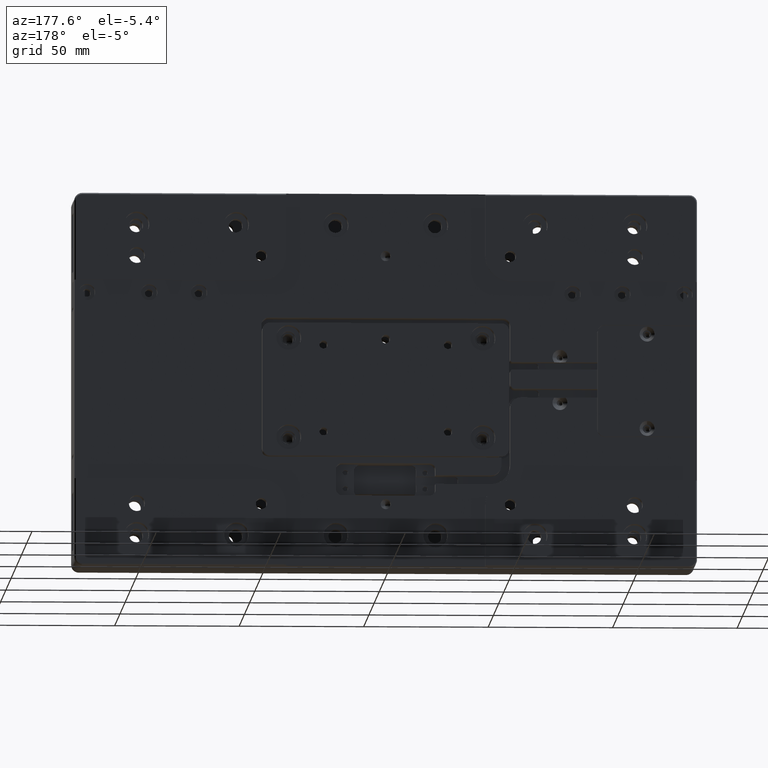
[diagram: clean part render]
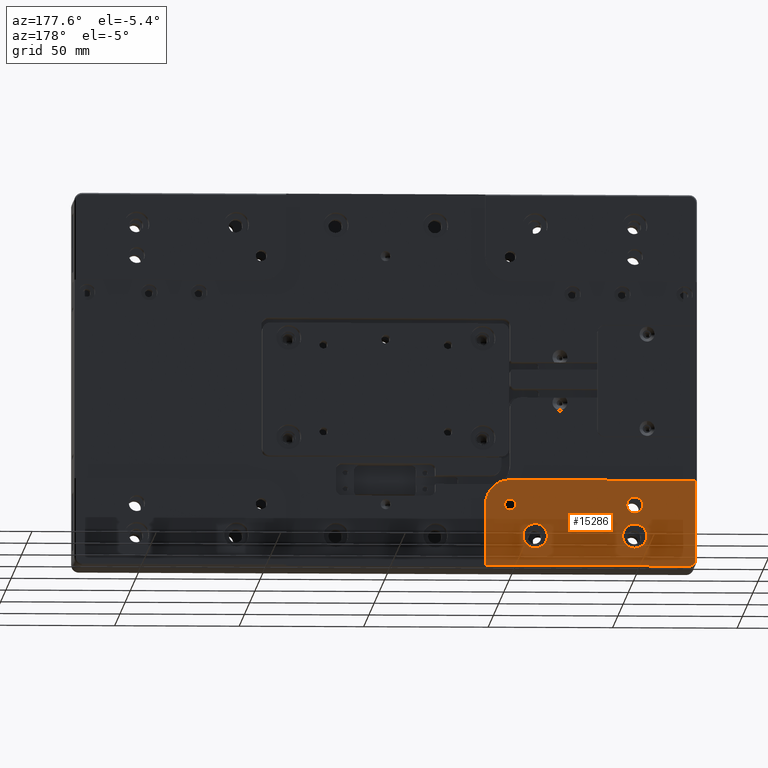
[diagram: same view with one face highlighted and labeled with its STEP entity id]
A machine part, auxiliary view. The second image highlights one B-rep face of the part: STEP entity #15286.
In plain terms, the highlighted planar face has unit normal (0, 1, 0).
Its self-contained STEP definition (entity closure, byte-faithful):
#251 = ORIENTED_EDGE ( 'NONE', *, *, #7721, .T. ) ;
#1896 = CARTESIAN_POINT ( 'NONE',  ( -50.00000000000000000, 12.00000000000000000, -50.00000000000000000 ) ) ;
#2247 = DIRECTION ( 'NONE',  ( -0.000000000000000000, -1.000000000000000000, -0.000000000000000000 ) ) ;
#2681 = EDGE_CURVE ( 'NONE', #24366, #23228, #30485, .T. ) ;
#3360 = FACE_BOUND ( 'NONE', #8595, .T. ) ;
#4579 = DIRECTION ( 'NONE',  ( 0.000000000000000000, -1.000000000000000000, 0.000000000000000000 ) ) ;
#4819 = CIRCLE ( 'NONE', #19091, 10.00000000000000178 ) ;
#5275 = ORIENTED_EDGE ( 'NONE', *, *, #5992, .T. ) ;
#5756 = CIRCLE ( 'NONE', #21733, 2.499999999997726263 ) ;
#5873 = LINE ( 'NONE', #30548, #28850 ) ;
#5992 = EDGE_CURVE ( 'NONE', #18808, #21223, #5756, .T. ) ;
#6178 = CARTESIAN_POINT ( 'NONE',  ( -40.00000000000000000, 12.00000000000000000, -75.00000000000000000 ) ) ;
#6211 = CARTESIAN_POINT ( 'NONE',  ( -125.0000000000000000, 12.00000000000000000, -75.00000000000000000 ) ) ;
#6576 = VECTOR ( 'NONE', #32013, 1000.000000000000000 ) ;
#6736 = FACE_BOUND ( 'NONE', #26956, .T. ) ;
#7309 = CARTESIAN_POINT ( 'NONE',  ( -50.00000000000000000, 12.00000000000000355, -50.00000000000000000 ) ) ;
#7429 = CARTESIAN_POINT ( 'NONE',  ( -124.5000000000000000, 12.00000000000000000, -75.00000000000000000 ) ) ;
#7655 = CARTESIAN_POINT ( 'NONE',  ( -40.00000000000000000, 12.00000000000000355, -50.00000000000000000 ) ) ;
#7721 = EDGE_CURVE ( 'NONE', #32444, #32444, #18418, .T. ) ;
#8595 = EDGE_LOOP ( 'NONE', ( #30174 ) ) ;
#8640 = EDGE_LOOP ( 'NONE', ( #12003 ) ) ;
#8876 = EDGE_CURVE ( 'NONE', #21223, #26590, #26555, .T. ) ;
#8917 = CARTESIAN_POINT ( 'NONE',  ( -124.5000000000000000, 12.00000000000000178, -40.00000000000000000 ) ) ;
#9424 = AXIS2_PLACEMENT_3D ( 'NONE', #1896, #4579, #10271 ) ;
#10210 = CARTESIAN_POINT ( 'NONE',  ( -122.0000000138499985, 12.00000000000317435, -74.49999999999839417 ) ) ;
#10271 = DIRECTION ( 'NONE',  ( 0.000000000000000000, 0.000000000000000000, -1.000000000000000000 ) ) ;
#10494 = CARTESIAN_POINT ( 'NONE',  ( -50.00000000000000000, 12.00000000000000178, -40.00000000000000000 ) ) ;
#10733 = EDGE_CURVE ( 'NONE', #35317, #35317, #18992, .T. ) ;
#11093 = DIRECTION ( 'NONE',  ( -0.000000000000000000, 1.000000000000000000, -0.000000000000000000 ) ) ;
#11187 = EDGE_CURVE ( 'NONE', #32988, #32988, #33856, .T. ) ;
#12003 = ORIENTED_EDGE ( 'NONE', *, *, #11187, .T. ) ;
#13326 = ORIENTED_EDGE ( 'NONE', *, *, #18784, .T. ) ;
#13751 = DIRECTION ( 'NONE',  ( 0.000000000000000000, 0.000000000000000000, -1.000000000000000000 ) ) ;
#13867 = AXIS2_PLACEMENT_3D ( 'NONE', #22754, #33670, #30972 ) ;
#14089 = DIRECTION ( 'NONE',  ( 1.000000000000000000, 0.000000000000000000, -0.000000000000000000 ) ) ;
#14160 = ORIENTED_EDGE ( 'NONE', *, *, #24395, .T. ) ;
#15286 = ADVANCED_FACE ( 'NONE', ( #6736, #3360, #25142, #28534, #22461 ), #30700, .T. ) ;
#15468 = ORIENTED_EDGE ( 'NONE', *, *, #2681, .T. ) ;
#15562 = CARTESIAN_POINT ( 'NONE',  ( -125.0000000000000000, 12.00000000000000000, -74.50000000000000000 ) ) ;
#15695 = CIRCLE ( 'NONE', #9424, 2.250000000000001776 ) ;
#15953 = EDGE_LOOP ( 'NONE', ( #15468, #13326, #5275, #17165, #28882, #14160 ) ) ;
#16152 = CARTESIAN_POINT ( 'NONE',  ( -60.00000000000000000, 12.00000000000000000, -62.50000000000000000 ) ) ;
#16339 = DIRECTION ( 'NONE',  ( 0.000000000000000000, 0.000000000000000000, 1.000000000000000000 ) ) ;
#17165 = ORIENTED_EDGE ( 'NONE', *, *, #8876, .T. ) ;
#18312 = DIRECTION ( 'NONE',  ( 0.000000000000000000, -0.000000000000000000, 1.000000000000000000 ) ) ;
#18418 = CIRCLE ( 'NONE', #21270, 4.874999999999997335 ) ;
#18439 = VECTOR ( 'NONE', #18312, 1000.000000000000000 ) ;
#18441 = AXIS2_PLACEMENT_3D ( 'NONE', #6211, #25317, #33559 ) ;
#18784 = EDGE_CURVE ( 'NONE', #23228, #18808, #32373, .T. ) ;
#18808 = VERTEX_POINT ( 'NONE', #10210 ) ;
#18992 = CIRCLE ( 'NONE', #26988, 4.874999999999997335 ) ;
#19091 = AXIS2_PLACEMENT_3D ( 'NONE', #7309, #26404, #31950 ) ;
#19381 = CARTESIAN_POINT ( 'NONE',  ( -100.0000000000000000, 12.00000000000000000, -53.20000000000000284 ) ) ;
#20472 = EDGE_CURVE ( 'NONE', #26590, #29339, #5873, .T. ) ;
#21007 = CARTESIAN_POINT ( 'NONE',  ( -100.0000000000000000, 12.00000000000000000, -57.62500000000000000 ) ) ;
#21223 = VERTEX_POINT ( 'NONE', #32969 ) ;
#21270 = AXIS2_PLACEMENT_3D ( 'NONE', #27069, #2247, #16339 ) ;
#21733 = AXIS2_PLACEMENT_3D ( 'NONE', #27354, #11093, #13751 ) ;
#22461 = FACE_OUTER_BOUND ( 'NONE', #15953, .T. ) ;
#22466 = VERTEX_POINT ( 'NONE', #27845 ) ;
#22601 = ORIENTED_EDGE ( 'NONE', *, *, #24845, .T. ) ;
#22608 = DIRECTION ( 'NONE',  ( -0.000000000000000000, -0.000000000000000000, -1.000000000000000000 ) ) ;
#22754 = CARTESIAN_POINT ( 'NONE',  ( -100.0000000000000000, 12.00000000000000000, -50.00000000000000000 ) ) ;
#23228 = VERTEX_POINT ( 'NONE', #26927 ) ;
#24366 = VERTEX_POINT ( 'NONE', #7655 ) ;
#24395 = EDGE_CURVE ( 'NONE', #29339, #24366, #4819, .T. ) ;
#24845 = EDGE_CURVE ( 'NONE', #22466, #22466, #15695, .T. ) ;
#25142 = FACE_BOUND ( 'NONE', #26708, .T. ) ;
#25317 = DIRECTION ( 'NONE',  ( 0.000000000000000000, 1.000000000000000000, 0.000000000000000000 ) ) ;
#26404 = DIRECTION ( 'NONE',  ( 0.000000000000000000, 1.000000000000000000, 0.000000000000000000 ) ) ;
#26555 = LINE ( 'NONE', #7429, #18439 ) ;
#26590 = VERTEX_POINT ( 'NONE', #8917 ) ;
#26708 = EDGE_LOOP ( 'NONE', ( #251 ) ) ;
#26927 = CARTESIAN_POINT ( 'NONE',  ( -40.00000000000000000, 12.00000000096000186, -74.49999999903999992 ) ) ;
#26956 = EDGE_LOOP ( 'NONE', ( #22601 ) ) ;
#26988 = AXIS2_PLACEMENT_3D ( 'NONE', #16152, #34934, #29220 ) ;
#27069 = CARTESIAN_POINT ( 'NONE',  ( -100.0000000000000000, 12.00000000000000000, -62.50000000000000000 ) ) ;
#27263 = CARTESIAN_POINT ( 'NONE',  ( -60.00000000000000000, 12.00000000000000000, -57.62500000000000000 ) ) ;
#27354 = CARTESIAN_POINT ( 'NONE',  ( -122.0000000000000000, 12.00000000000317435, -72.00000000000001421 ) ) ;
#27845 = CARTESIAN_POINT ( 'NONE',  ( -50.00000000000000000, 12.00000000000000000, -52.25000000000000711 ) ) ;
#28408 = VECTOR ( 'NONE', #22608, 1000.000000000000000 ) ;
#28534 = FACE_BOUND ( 'NONE', #8640, .T. ) ;
#28850 = VECTOR ( 'NONE', #14089, 1000.000000000000000 ) ;
#28882 = ORIENTED_EDGE ( 'NONE', *, *, #20472, .T. ) ;
#29220 = DIRECTION ( 'NONE',  ( 0.000000000000000000, 0.000000000000000000, 1.000000000000000000 ) ) ;
#29339 = VERTEX_POINT ( 'NONE', #10494 ) ;
#30174 = ORIENTED_EDGE ( 'NONE', *, *, #10733, .T. ) ;
#30485 = LINE ( 'NONE', #6178, #28408 ) ;
#30548 = CARTESIAN_POINT ( 'NONE',  ( -125.0000000000000000, 12.00000000000000000, -40.00000000000000000 ) ) ;
#30700 = PLANE ( 'NONE',  #18441 ) ;
#30972 = DIRECTION ( 'NONE',  ( 0.000000000000000000, 0.000000000000000000, -1.000000000000000000 ) ) ;
#31950 = DIRECTION ( 'NONE',  ( 0.000000000000000000, 0.000000000000000000, 1.000000000000000000 ) ) ;
#32013 = DIRECTION ( 'NONE',  ( -1.000000000000000000, -0.000000000000000000, 0.000000000000000000 ) ) ;
#32373 = LINE ( 'NONE', #15562, #6576 ) ;
#32444 = VERTEX_POINT ( 'NONE', #21007 ) ;
#32969 = CARTESIAN_POINT ( 'NONE',  ( -124.4999999999984226, 12.00000000000158806, -72.00000000000001421 ) ) ;
#32988 = VERTEX_POINT ( 'NONE', #19381 ) ;
#33559 = DIRECTION ( 'NONE',  ( 0.000000000000000000, -0.000000000000000000, 1.000000000000000000 ) ) ;
#33670 = DIRECTION ( 'NONE',  ( 0.000000000000000000, -1.000000000000000000, 0.000000000000000000 ) ) ;
#33856 = CIRCLE ( 'NONE', #13867, 3.200000000000001510 ) ;
#34934 = DIRECTION ( 'NONE',  ( -0.000000000000000000, -1.000000000000000000, -0.000000000000000000 ) ) ;
#35317 = VERTEX_POINT ( 'NONE', #27263 ) ;